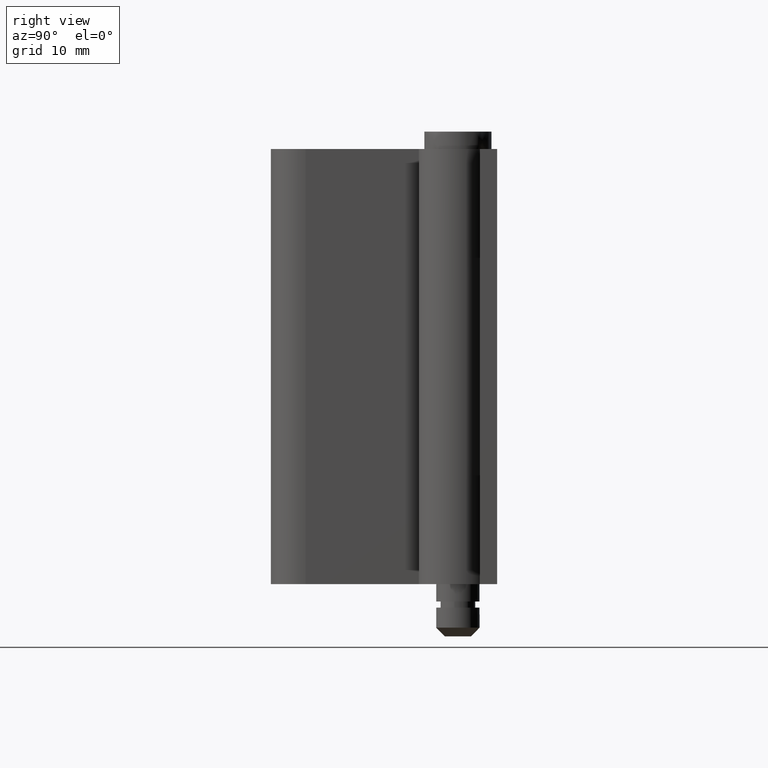
[diagram: clean part render]
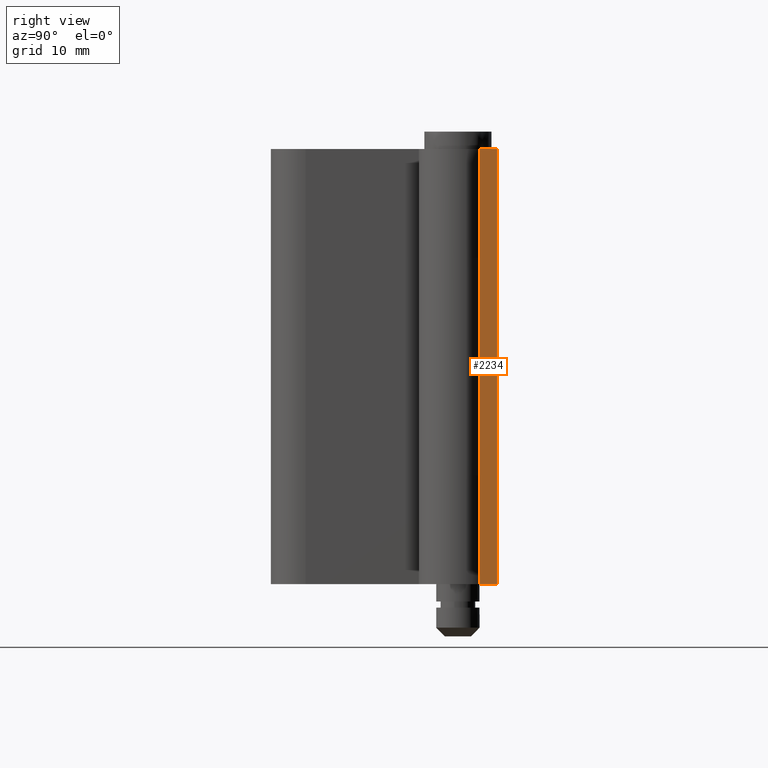
[diagram: same view with one face highlighted and labeled with its STEP entity id]
A machine part, right view. The second image highlights one B-rep face of the part: STEP entity #2234.
In plain terms, the highlighted face is a freeform B-spline surface patch.
Its self-contained STEP definition (entity closure, byte-faithful):
#2199=CARTESIAN_POINT('',(15.0,2.400100003876388,58.497499903090322));
#2200=CARTESIAN_POINT('',(15.0,2.400100003876388,3.502498755805195));
#2201=CARTESIAN_POINT('',(15.0,4.599900049767792,58.497499903090322));
#2202=CARTESIAN_POINT('',(15.0,4.599900049767792,3.502498755805195));
#2203=B_SPLINE_SURFACE_WITH_KNOTS('',1,1,((#2199,#2201),(#2200,#2202)),.UNSPECIFIED.,.F.,.F.,.U.,(2,2),(2,2),(0.0,54.995001147285123),(0.0,2.199800045891404),.UNSPECIFIED.);
#2204=CARTESIAN_POINT('',(15.0,4.500000000000000,6.0));
#2205=VERTEX_POINT('',#2204);
#2206=CARTESIAN_POINT('',(15.0,2.500000000000000,6.0));
#2207=VERTEX_POINT('',#2206);
#2208=CARTESIAN_POINT('',(15.0,4.500000000000000,6.0));
#2209=CARTESIAN_POINT('',(15.0,2.500000000000000,6.0));
#2210=QUASI_UNIFORM_CURVE('',1,(#2208,#2209),.UNSPECIFIED.,.F.,.U.);
#2211=EDGE_CURVE('',#2205,#2207,#2210,.T.);
#2212=ORIENTED_EDGE('',*,*,#2211,.F.);
#2213=CARTESIAN_POINT('',(15.0,4.500000000000000,56.0));
#2214=VERTEX_POINT('',#2213);
#2215=CARTESIAN_POINT('',(15.0,4.500000000000000,56.0));
#2216=CARTESIAN_POINT('',(15.0,4.500000000000000,6.0));
#2217=QUASI_UNIFORM_CURVE('',1,(#2215,#2216),.UNSPECIFIED.,.F.,.U.);
#2218=EDGE_CURVE('',#2214,#2205,#2217,.T.);
#2219=ORIENTED_EDGE('',*,*,#2218,.F.);
#2220=CARTESIAN_POINT('',(15.0,2.500000000000000,56.0));
#2221=VERTEX_POINT('',#2220);
#2222=CARTESIAN_POINT('',(15.0,4.500000000000000,56.0));
#2223=CARTESIAN_POINT('',(15.0,2.500000000000000,56.0));
#2224=QUASI_UNIFORM_CURVE('',1,(#2222,#2223),.UNSPECIFIED.,.F.,.U.);
#2225=EDGE_CURVE('',#2214,#2221,#2224,.T.);
#2226=ORIENTED_EDGE('',*,*,#2225,.T.);
#2227=CARTESIAN_POINT('',(15.0,2.500000000000000,56.0));
#2228=CARTESIAN_POINT('',(15.0,2.500000000000000,6.0));
#2229=QUASI_UNIFORM_CURVE('',1,(#2227,#2228),.UNSPECIFIED.,.F.,.U.);
#2230=EDGE_CURVE('',#2221,#2207,#2229,.T.);
#2231=ORIENTED_EDGE('',*,*,#2230,.T.);
#2232=EDGE_LOOP('',(#2212,#2219,#2226,#2231));
#2233=FACE_OUTER_BOUND('',#2232,.T.);
#2234=ADVANCED_FACE('',(#2233),#2203,.T.);